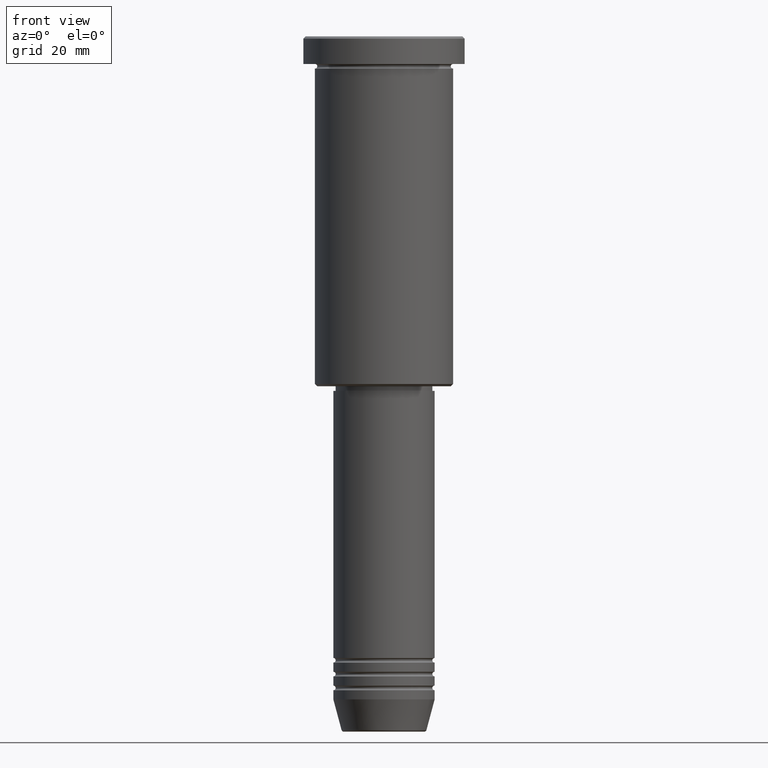
[diagram: clean part render]
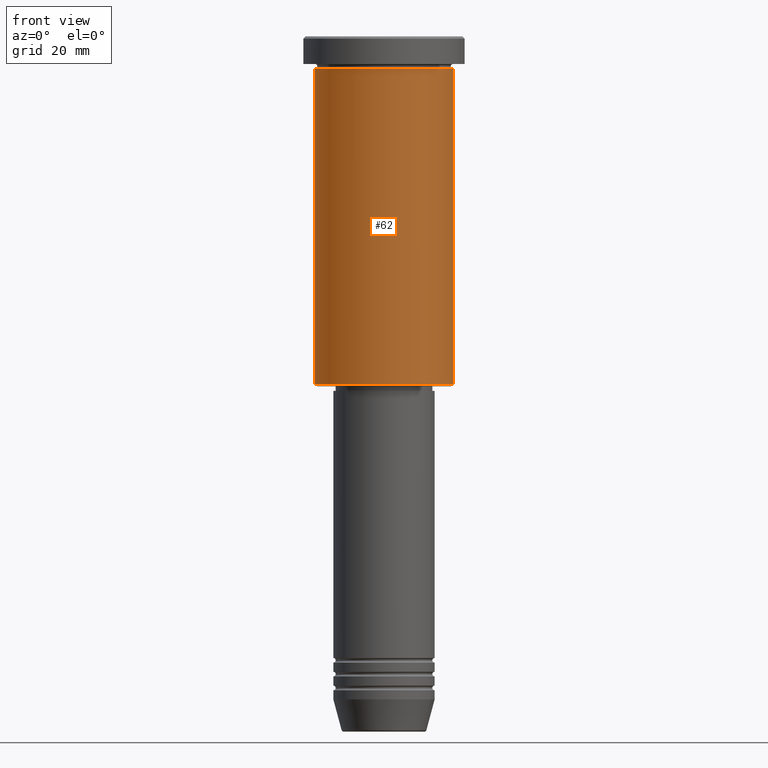
[diagram: same view with one face highlighted and labeled with its STEP entity id]
A machine part, front view. The second image highlights one B-rep face of the part: STEP entity #62.
In plain terms, the highlighted cylindrical surface (partial cylindrical patch) has radius 15 mm, axis along (-0, -0, 1).
Its self-contained STEP definition (entity closure, byte-faithful):
#2 = ORIENTED_EDGE ( 'NONE', *, *, #204, .F. ) ;
#44 = EDGE_CURVE ( 'NONE', #242, #168, #763, .T. ) ;
#60 = DIRECTION ( 'NONE',  ( -1.000000000000000000, 0.000000000000000000, 0.000000000000000000 ) ) ;
#62 = ADVANCED_FACE ( 'NONE', ( #307 ), #503, .T. ) ;
#81 = DIRECTION ( 'NONE',  ( 1.000000000000000000, 0.000000000000000000, 0.000000000000000000 ) ) ;
#108 = CIRCLE ( 'NONE', #331, 15.00000000000000000 ) ;
#128 = DIRECTION ( 'NONE',  ( 1.000000000000000000, 0.000000000000000000, 0.000000000000000000 ) ) ;
#168 = VERTEX_POINT ( 'NONE', #1071 ) ;
#204 = EDGE_CURVE ( 'NONE', #660, #168, #108, .T. ) ;
#212 = EDGE_LOOP ( 'NONE', ( #1144, #638, #744, #2 ) ) ;
#236 = DIRECTION ( 'NONE',  ( -0.000000000000000000, -0.000000000000000000, 1.000000000000000000 ) ) ;
#242 = VERTEX_POINT ( 'NONE', #995 ) ;
#253 = CARTESIAN_POINT ( 'NONE',  ( -15.00000000000000000, 1.836970198721029589E-15, 0.000000000000000000 ) ) ;
#257 = EDGE_CURVE ( 'NONE', #679, #660, #1067, .T. ) ;
#307 = FACE_OUTER_BOUND ( 'NONE', #212, .T. ) ;
#331 = AXIS2_PLACEMENT_3D ( 'NONE', #515, #527, #81 ) ;
#334 = CIRCLE ( 'NONE', #987, 15.00000000000000000 ) ;
#383 = CARTESIAN_POINT ( 'NONE',  ( -15.00000000000000000, 1.836970198721029589E-15, -75.49999999999997158 ) ) ;
#389 = VECTOR ( 'NONE', #979, 1000.000000000000000 ) ;
#400 = CARTESIAN_POINT ( 'NONE',  ( -15.00000000000000000, 1.836970198721029589E-15, -6.999999999999995559 ) ) ;
#485 = CARTESIAN_POINT ( 'NONE',  ( 15.00000000000000000, 0.000000000000000000, 0.000000000000000000 ) ) ;
#503 = CYLINDRICAL_SURFACE ( 'NONE', #903, 15.00000000000000000 ) ;
#515 = CARTESIAN_POINT ( 'NONE',  ( 0.000000000000000000, 0.000000000000000000, -6.999999999999995559 ) ) ;
#527 = DIRECTION ( 'NONE',  ( -0.000000000000000000, -0.000000000000000000, 1.000000000000000000 ) ) ;
#580 = EDGE_CURVE ( 'NONE', #679, #242, #334, .T. ) ;
#615 = CARTESIAN_POINT ( 'NONE',  ( 0.000000000000000000, 0.000000000000000000, 0.000000000000000000 ) ) ;
#638 = ORIENTED_EDGE ( 'NONE', *, *, #580, .T. ) ;
#660 = VERTEX_POINT ( 'NONE', #400 ) ;
#679 = VERTEX_POINT ( 'NONE', #383 ) ;
#687 = DIRECTION ( 'NONE',  ( -0.000000000000000000, -0.000000000000000000, 1.000000000000000000 ) ) ;
#695 = DIRECTION ( 'NONE',  ( -0.000000000000000000, -0.000000000000000000, 1.000000000000000000 ) ) ;
#702 = VECTOR ( 'NONE', #695, 1000.000000000000000 ) ;
#744 = ORIENTED_EDGE ( 'NONE', *, *, #44, .T. ) ;
#763 = LINE ( 'NONE', #485, #702 ) ;
#796 = CARTESIAN_POINT ( 'NONE',  ( 0.000000000000000000, 0.000000000000000000, -75.49999999999997158 ) ) ;
#903 = AXIS2_PLACEMENT_3D ( 'NONE', #615, #236, #128 ) ;
#979 = DIRECTION ( 'NONE',  ( -0.000000000000000000, -0.000000000000000000, 1.000000000000000000 ) ) ;
#987 = AXIS2_PLACEMENT_3D ( 'NONE', #796, #687, #60 ) ;
#995 = CARTESIAN_POINT ( 'NONE',  ( 15.00000000000000000, 0.000000000000000000, -75.49999999999997158 ) ) ;
#1067 = LINE ( 'NONE', #253, #389 ) ;
#1071 = CARTESIAN_POINT ( 'NONE',  ( 15.00000000000000000, 0.000000000000000000, -6.999999999999995559 ) ) ;
#1144 = ORIENTED_EDGE ( 'NONE', *, *, #257, .F. ) ;